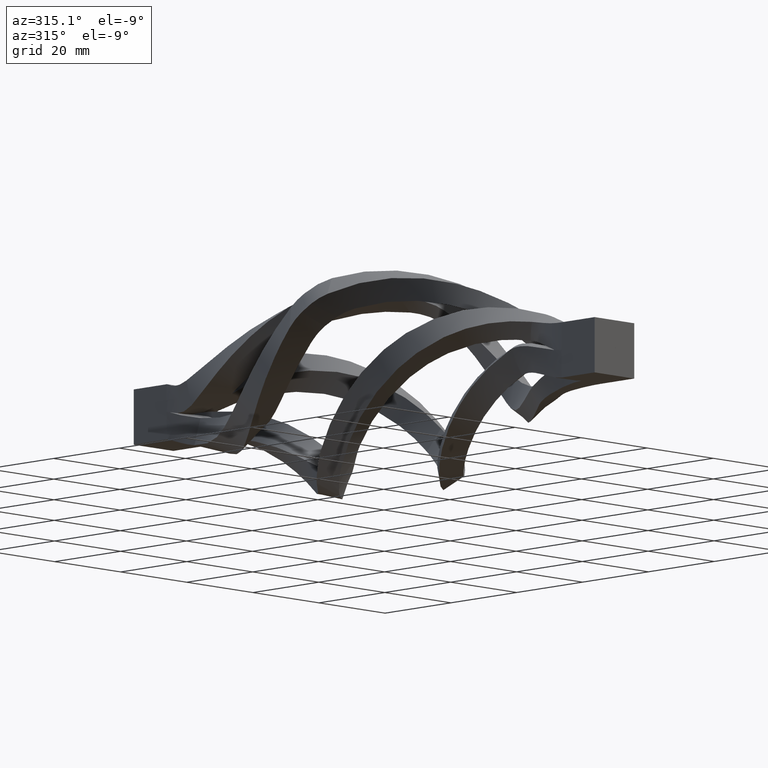
[diagram: clean part render]
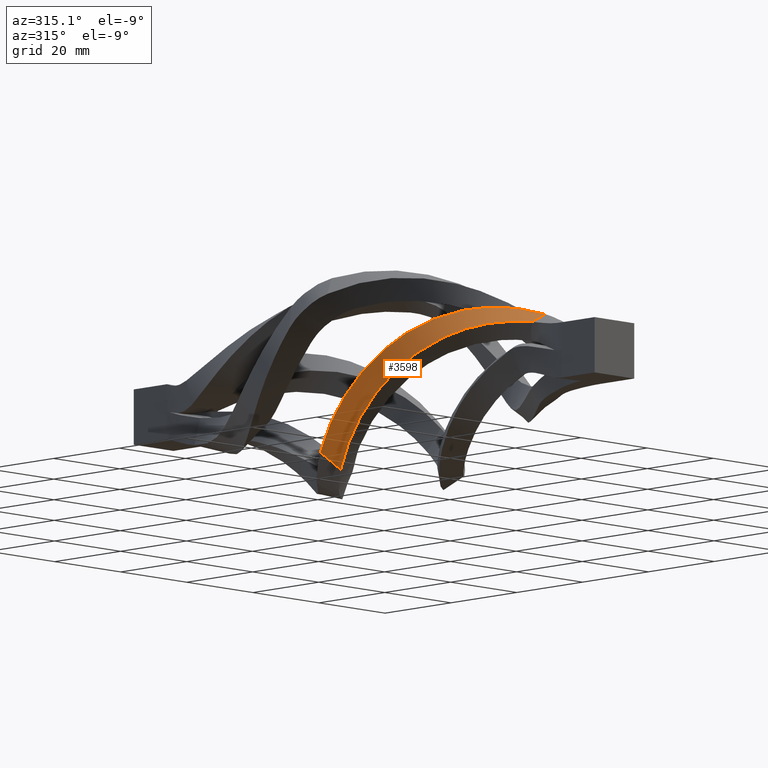
[diagram: same view with one face highlighted and labeled with its STEP entity id]
A machine part, auxiliary view. The second image highlights one B-rep face of the part: STEP entity #3598.
In plain terms, the highlighted face is a freeform B-spline surface patch.
Its self-contained STEP definition (entity closure, byte-faithful):
#425 = CARTESIAN_POINT ( 'NONE',  ( -1.021020517412378315, -48.60113055643217450, 9.046567190891613208 ) ) ;
#560 = CARTESIAN_POINT ( 'NONE',  ( -22.97785956624904102, -6.467752909526797822, -11.31587842585133608 ) ) ;
#673 = EDGE_LOOP ( 'NONE', ( #13944, #6535, #9233, #1494 ) ) ;
#678 = FACE_OUTER_BOUND ( 'NONE', #673, .T. ) ;
#872 = CARTESIAN_POINT ( 'NONE',  ( -18.64158208520261084, -6.633252906475789246, -17.89002939505439471 ) ) ;
#1494 = ORIENTED_EDGE ( 'NONE', *, *, #14233, .T. ) ;
#1704 = CARTESIAN_POINT ( 'NONE',  ( -18.15309708752637263, -3.050684242567008653, -19.63049739448653952 ) ) ;
#2044 = CARTESIAN_POINT ( 'NONE',  ( -1.661103241235579064, -43.96773121679106566, 11.43098393993550133 ) ) ;
#2091 = CARTESIAN_POINT ( 'NONE',  ( -4.539131831124914029, -49.42068362224298284, 7.438691302499110591 ) ) ;
#2655 = VERTEX_POINT ( 'NONE', #4796 ) ;
#3191 = CARTESIAN_POINT ( 'NONE',  ( 0.8818511874570357234, -48.13441957616089439, 9.850307094717404510 ) ) ;
#3264 = CARTESIAN_POINT ( 'NONE',  ( -20.85941379660773265, -1.553429965097680832, -17.31260836254738678 ) ) ;
#3276 = CARTESIAN_POINT ( 'NONE',  ( -11.86561198244405979, -31.46775290950096959, 10.79313720077927208 ) ) ;
#3598 = ADVANCED_FACE ( 'NONE', ( #678 ), #7213, .T. ) ;
#4470 = CARTESIAN_POINT ( 'NONE',  ( -15.33418013124785162, -27.30108624284232377, 8.826009850349359809 ) ) ;
#4545 = B_SPLINE_CURVE_WITH_KNOTS ( 'NONE', 3,
 ( #3264, #9859, #13799, #15121, #9965, #4470, #16442, #8602, #2044, #13851 ),
 .UNSPECIFIED., .F., .F.,
 ( 4, 2, 2, 2, 4 ),
 ( 0.5341608721577056906, 0.6250000000000000000, 0.7500000000000000000, 0.8750000000000000000, 1.000000000000000000 ),
 .UNSPECIFIED. ) ;
#4546 = CARTESIAN_POINT ( 'NONE',  ( -19.58162914298617707, -8.333333333365912310, -16.00371721929969837 ) ) ;
#4604 = CARTESIAN_POINT ( 'NONE',  ( -4.242640687119087595, -50.00000000000000000, 7.348469228349647331 ) ) ;
#4796 = CARTESIAN_POINT ( 'NONE',  ( -16.81025835379872291, -3.697801499753341936, -20.86003899735220202 ) ) ;
#5276 = B_SPLINE_CURVE_WITH_KNOTS ( 'NONE', 3,
 ( #8305, #9561, #425, #3191 ),
 .UNSPECIFIED., .F., .F.,
 ( 4, 4 ),
 ( 0.000000000000000000, 1.000000000000000000 ),
 .UNSPECIFIED. ) ;
#5334 = EDGE_CURVE ( 'NONE', #5515, #5722, #5276, .T. ) ;
#5515 = VERTEX_POINT ( 'NONE', #2091 ) ;
#5722 = VERTEX_POINT ( 'NONE', #15775 ) ;
#5748 = CARTESIAN_POINT ( 'NONE',  ( -17.58015250692239562, -4.173495097018950162, -20.57069826401063750 ) ) ;
#5857 = CARTESIAN_POINT ( 'NONE',  ( -20.01761723837868345, -20.83333333331857773, -3.206194389843749271 ) ) ;
#5965 = CARTESIAN_POINT ( 'NONE',  ( -9.150656103966644750, -41.47350952431553850, 7.863814158604829352 ) ) ;
#6023 = EDGE_CURVE ( 'NONE', #2655, #5515, #11510, .T. ) ;
#6535 = ORIENTED_EDGE ( 'NONE', *, *, #5334, .T. ) ;
#7065 = CARTESIAN_POINT ( 'NONE',  ( 0.8818511874570320597, -48.13441957616088729, 9.850307094717408063 ) ) ;
#7124 = CARTESIAN_POINT ( 'NONE',  ( -21.75184837816961192, -2.307837559287291729, -16.55706282587382461 ) ) ;
#7182 = CARTESIAN_POINT ( 'NONE',  ( -14.22728425483896153, -33.33333333334008586, 5.507995980435186567 ) ) ;
#7213 = B_SPLINE_SURFACE_WITH_KNOTS ( 'NONE', 1, 3, ( 
 ( #9873, #7124, #560, #9925, #8437, #16273, #3276, #7293, #9747, #7065 ),
 ( #12436, #5748, #4546, #13693, #5857, #15025, #7182, #8495, #9810, #4604 ) ),
 .UNSPECIFIED., .F., .F., .F.,
 ( 2, 2 ),
 ( 4, 2, 2, 2, 4 ),
 ( 0.000000000000000000, 1.000000000000000000 ),
 ( 0.5000000000000000000, 0.6250000000000000000, 0.7500000000000000000, 0.8750000000000000000, 1.000000000000000000 ),
 .UNSPECIFIED. ) ;
#7293 = CARTESIAN_POINT ( 'NONE',  ( -5.017823328672612604, -39.80108624282080854, 12.09237600132505364 ) ) ;
#8268 = B_SPLINE_CURVE_WITH_KNOTS ( 'NONE', 3,
 ( #9637, #15075, #1704, #8370 ),
 .UNSPECIFIED., .F., .F.,
 ( 4, 4 ),
 ( 2.121659050517634768E-15, 0.005796512410685154479 ),
 .UNSPECIFIED. ) ;
#8305 = CARTESIAN_POINT ( 'NONE',  ( -4.539131831124914029, -49.42068362224298284, 7.438691302499110591 ) ) ;
#8370 = CARTESIAN_POINT ( 'NONE',  ( -16.81025835379872291, -3.697801499753341936, -20.86003899735220202 ) ) ;
#8437 = CARTESIAN_POINT ( 'NONE',  ( -20.61491966526331510, -18.96775290947946147, 2.551708305759006201 ) ) ;
#8495 = CARTESIAN_POINT ( 'NONE',  ( -9.030193479649653909, -41.66666666665992835, 7.919715050244335863 ) ) ;
#8602 = CARTESIAN_POINT ( 'NONE',  ( -5.017823328676828787, -39.80108624282080854, 12.09237600132505364 ) ) ;
#8877 = VERTEX_POINT ( 'NONE', #13374 ) ;
#9233 = ORIENTED_EDGE ( 'NONE', *, *, #15998, .F. ) ;
#9561 = CARTESIAN_POINT ( 'NONE',  ( -2.828308586379829404, -49.02989084591409608, 8.242384296063541171 ) ) ;
#9637 = CARTESIAN_POINT ( 'NONE',  ( -20.85941379660773265, -1.553429965097680832, -17.31260836254738678 ) ) ;
#9747 = CARTESIAN_POINT ( 'NONE',  ( -1.661103241236353556, -43.96773121678980090, 11.43098393993598449 ) ) ;
#9810 = CARTESIAN_POINT ( 'NONE',  ( -6.348309091203977239, -45.83455923405022503, 8.034543373215660367 ) ) ;
#9859 = CARTESIAN_POINT ( 'NONE',  ( -22.30897290579708425, -4.582043170022932266, -13.72650675390188546 ) ) ;
#9873 = CARTESIAN_POINT ( 'NONE',  ( -18.85640108571296025, 1.865580423839115154, -21.28252657224304656 ) ) ;
#9925 = CARTESIAN_POINT ( 'NONE',  ( -22.40437245655580512, -14.80108624279496610, -1.747708168555136110 ) ) ;
#9965 = CARTESIAN_POINT ( 'NONE',  ( -20.61491966526331510, -18.96775290947946147, 2.551708305759005757 ) ) ;
#10074 = CARTESIAN_POINT ( 'NONE',  ( -4.539131831124914029, -49.42068362224298284, 7.438691302499110591 ) ) ;
#11443 = CARTESIAN_POINT ( 'NONE',  ( -19.76124031665944258, -9.564932312013992188, -14.71868693061733069 ) ) ;
#11510 = B_SPLINE_CURVE_WITH_KNOTS ( 'NONE', 3,
 ( #15237, #872, #11443, #15286, #12651, #16599, #14016, #5965, #15125, #10074 ),
 .UNSPECIFIED., .F., .F.,
 ( 4, 2, 2, 2, 4 ),
 ( 0.5369479693597313252, 0.6250000000000000000, 0.7500000000000000000, 0.8750000000000000000, 0.9942052857296589385 ),
 .UNSPECIFIED. ) ;
#12436 = CARTESIAN_POINT ( 'NONE',  ( -14.12750000000054840, 0.000000000000000000, -24.46954778392900209 ) ) ;
#12651 = CARTESIAN_POINT ( 'NONE',  ( -20.01761723837868345, -20.83333333331857773, -3.206194389843749271 ) ) ;
#13374 = CARTESIAN_POINT ( 'NONE',  ( -20.85941379660773265, -1.553429965097680832, -17.31260836254738678 ) ) ;
#13693 = CARTESIAN_POINT ( 'NONE',  ( -20.79692714708310675, -16.66666666663408236, -7.308853124259001355 ) ) ;
#13799 = CARTESIAN_POINT ( 'NONE',  ( -22.89949628690314753, -7.606448648108083077, -10.00845026208071076 ) ) ;
#13851 = CARTESIAN_POINT ( 'NONE',  ( 0.8818511874570357234, -48.13441957616089439, 9.850307094717404510 ) ) ;
#13944 = ORIENTED_EDGE ( 'NONE', *, *, #6023, .T. ) ;
#14016 = CARTESIAN_POINT ( 'NONE',  ( -14.22728425483896153, -33.33333333334008586, 5.507995980435186567 ) ) ;
#14233 = EDGE_CURVE ( 'NONE', #8877, #2655, #8268, .T. ) ;
#15025 = CARTESIAN_POINT ( 'NONE',  ( -16.72266413585988687, -29.16666666668144003, 3.206194389844632564 ) ) ;
#15075 = CARTESIAN_POINT ( 'NONE',  ( -19.49581252331405068, -2.328600259144695261, -18.44108237740690015 ) ) ;
#15121 = CARTESIAN_POINT ( 'NONE',  ( -22.40437245654562304, -14.80108624279496610, -1.747708168555136110 ) ) ;
#15125 = CARTESIAN_POINT ( 'NONE',  ( -6.596782052346499725, -45.44813392395698770, 8.021552348902190488 ) ) ;
#15237 = CARTESIAN_POINT ( 'NONE',  ( -16.81025835379872291, -3.697801499753341936, -20.86003899735220202 ) ) ;
#15286 = CARTESIAN_POINT ( 'NONE',  ( -20.79692714708310675, -16.66666666663408236, -7.308853124259001355 ) ) ;
#15775 = CARTESIAN_POINT ( 'NONE',  ( 0.8818511874570357234, -48.13441957616089439, 9.850307094717404510 ) ) ;
#15998 = EDGE_CURVE ( 'NONE', #8877, #5722, #4545, .T. ) ;
#16273 = CARTESIAN_POINT ( 'NONE',  ( -15.33418013124785162, -27.30108624284232377, 8.826009850349361585 ) ) ;
#16442 = CARTESIAN_POINT ( 'NONE',  ( -11.86561198243984450, -31.46775290950096959, 10.79313720077927208 ) ) ;
#16599 = CARTESIAN_POINT ( 'NONE',  ( -16.72266413585988687, -29.16666666668144003, 3.206194389844632564 ) ) ;